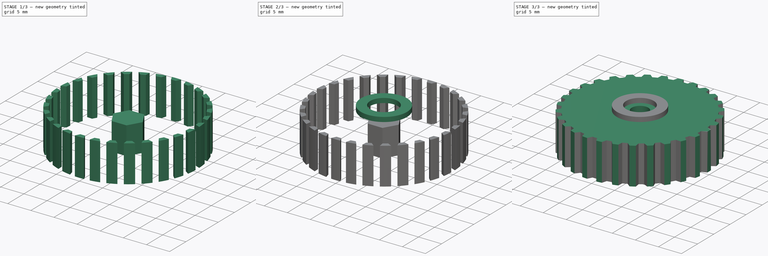
[diagram: build sequence overview — one tinted view per stage of 3, left to right]
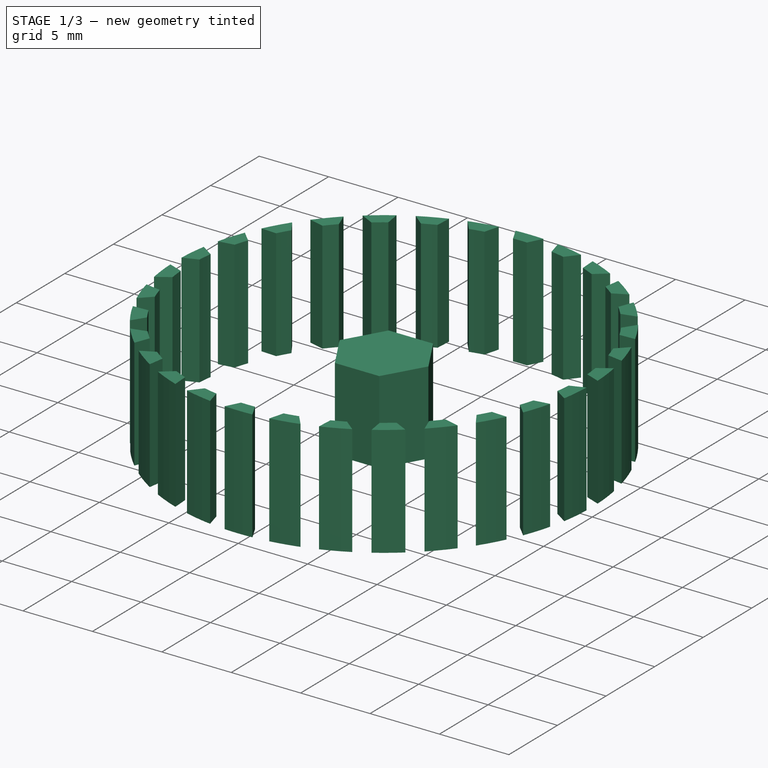
[diagram: stage 1 of 3 — iso view after this stage's code; geometry added in this stage tinted green]
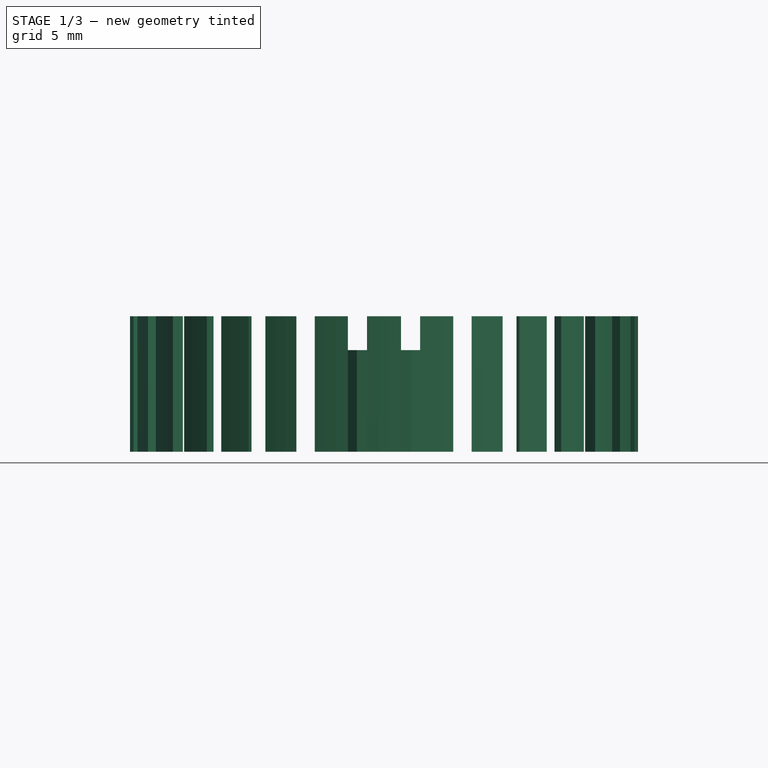
[diagram: stage 1 of 3 — front view after this stage's code; geometry added in this stage tinted green]
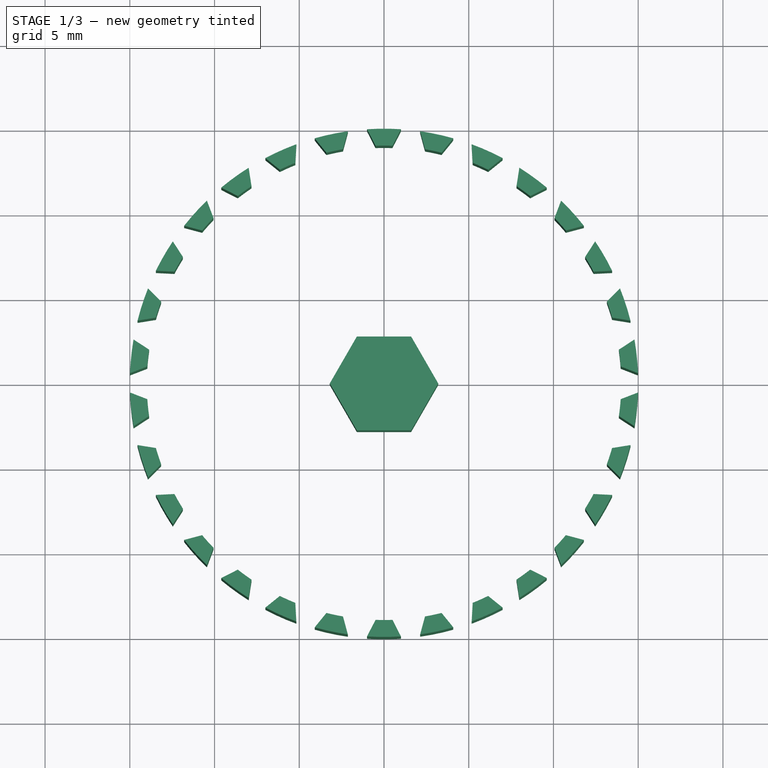
[diagram: stage 1 of 3 — top view after this stage's code; geometry added in this stage tinted green]
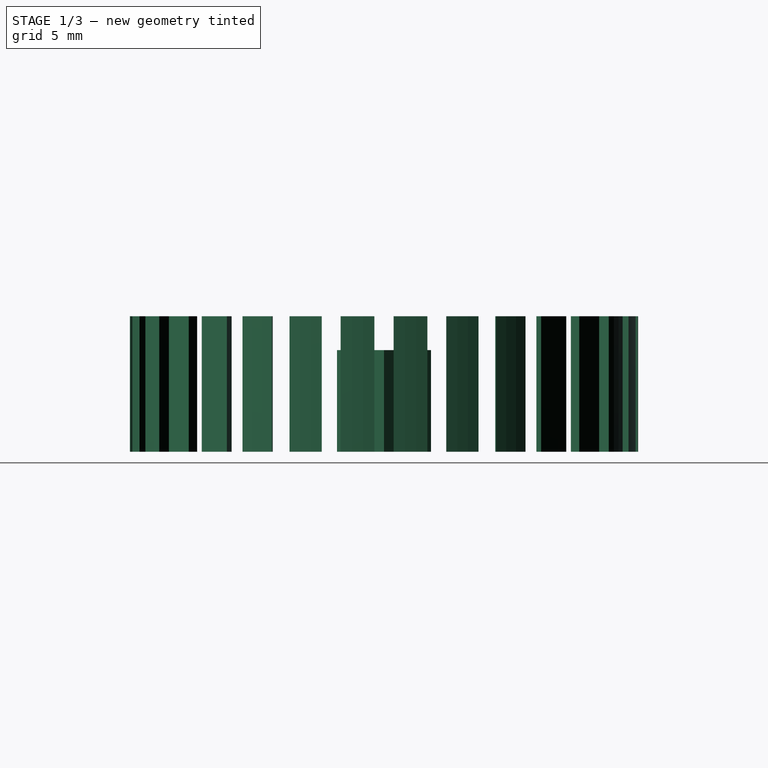
[diagram: stage 1 of 3 — right view after this stage's code; geometry added in this stage tinted green]
FCSTD DOCUMENT  (FreeCAD 0.16R6707 (Git))
Label: HeightKnob
License: All rights reserved
LicenseURL: http://en.wikipedia.org/wiki/All_rights_reserved
objects: Sketcher::SketchObject×4, PartDesign::Pad×4, Part::MultiFuse×2, Part::FeaturePython×1, Part::Cut×1
note: 16 computed .brp shape members not serialized (recipe doc carries the construction recipe); baked Part::Feature solids carry a one-line shape summary decoded from their .brp

FEATURE [Sketcher::SketchObject] Sketch001
  sketch-geometry (7):
    g0: LineSegment StartX=1.6 StartY=-2.77128 StartZ=0 EndX=3.2 EndY=0 EndZ=0
    g1: LineSegment StartX=3.2 StartY=0 StartZ=0 EndX=1.6 EndY=2.77128 EndZ=0
    g2: LineSegment StartX=1.6 StartY=2.77128 StartZ=0 EndX=-1.6 EndY=2.77128 EndZ=0
    g3: LineSegment StartX=-1.6 StartY=2.77128 StartZ=0 EndX=-3.2 EndY=0 EndZ=0
    g4: LineSegment StartX=-3.2 StartY=0 StartZ=0 EndX=-1.6 EndY=-2.77128 EndZ=0
    g5: LineSegment StartX=-1.6 StartY=-2.77128 StartZ=0 EndX=1.6 EndY=-2.77128 EndZ=0
    g6: Circle [constr] CenterX=0 CenterY=0 CenterZ=0 NormalX=0 NormalY=0 NormalZ=1 Radius=3.2
  constraints (16):
    c: Coincident(g0,g1)
    c: Coincident(g1,g2)
    c: Coincident(g2,g3)
    c: Coincident(g3,g4)
    c: Coincident(g4,g5)
    c: Coincident(g5,g0)
    c: Equal(g0, g1-g5) x5
    c: PointOnObject(g0,g6)
    c: PointOnObject(g1,g6)
    c: PointOnObject(g2,g6)
    c: PointOnObject(g3,g6)
    c: PointOnObject(g4,g6)
    c: PointOnObject(g5,g6)
    c: Coincident(g6,g-1)
    c: Parallel(g2,g-1)
    c: Radius(g6) = 3.2
FEATURE [PartDesign::Pad] Pad001  label="NutMount"
  Length = 6
  Length2 = 100
  Sketch = -> Sketch001
  Type = 0
FEATURE [Sketcher::SketchObject] Sketch002
  sketch-geometry (4):
    g0: ArcOfCircle CenterX=0 CenterY=0 CenterZ=0 NormalX=0 NormalY=0 NormalZ=1 Radius=15 StartAngle=1.50408 EndAngle=1.63751
    g1: ArcOfCircle CenterX=0 CenterY=0 CenterZ=0 NormalX=0 NormalY=0 NormalZ=1 Radius=14 StartAngle=1.53507 EndAngle=1.60652
    g2: LineSegment StartX=-1 StartY=14.9666 StartZ=0 EndX=-0.5 EndY=13.9911 EndZ=0
    g3: LineSegment StartX=1 StartY=14.9666 StartZ=0 EndX=0.5 EndY=13.9911 EndZ=0
  constraints (12):
    c: Coincident(g-1,g0)
    c: Coincident(g-1,g1)
    c: Radius(g0) = 15
    c: Radius(g1) = 14
    c: Coincident(g3,g1)
    c: Coincident(g3,g0)
    c: Coincident(g2,g0)
    c: Coincident(g2,g1)
    c: Equal(g2,g3)
    c: Symmetric(g0,g0,g-2)
    c: DistanceX(g0,g0) = 2
    c: DistanceX(g1,g1) = 1
FEATURE [PartDesign::Pad] Pad002
  Length = 8
  Length2 = 100
  Sketch = -> Sketch002
  Type = 0
FEATURE [Part::FeaturePython] Array  # Draft array (typed FeaturePython)
  Angle = 360
  ArrayType = 1
  Axis = (0,0,1)
  Base = -> Pad002
  Center = (0,0,0)
  Fuse = false
  IntervalAxis = (0,0,0)
  IntervalX = (1,0,0)
  IntervalY = (0,1,0)
  IntervalZ = (0,0,0)
  NumberPolar = 30
  NumberX = 2
  NumberY = 2
  NumberZ = 1
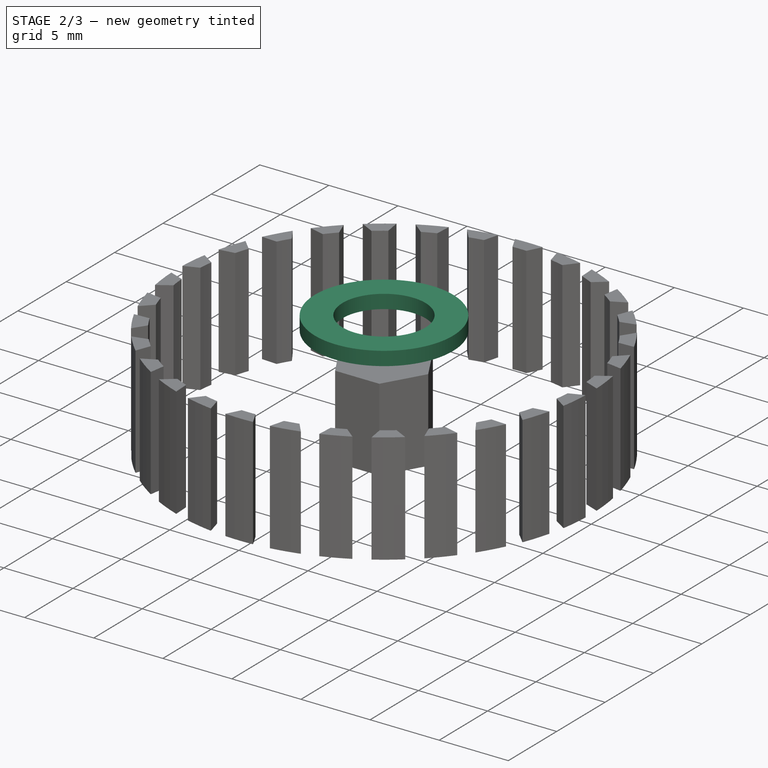
[diagram: stage 2 of 3 — iso view after this stage's code; geometry added in this stage tinted green]
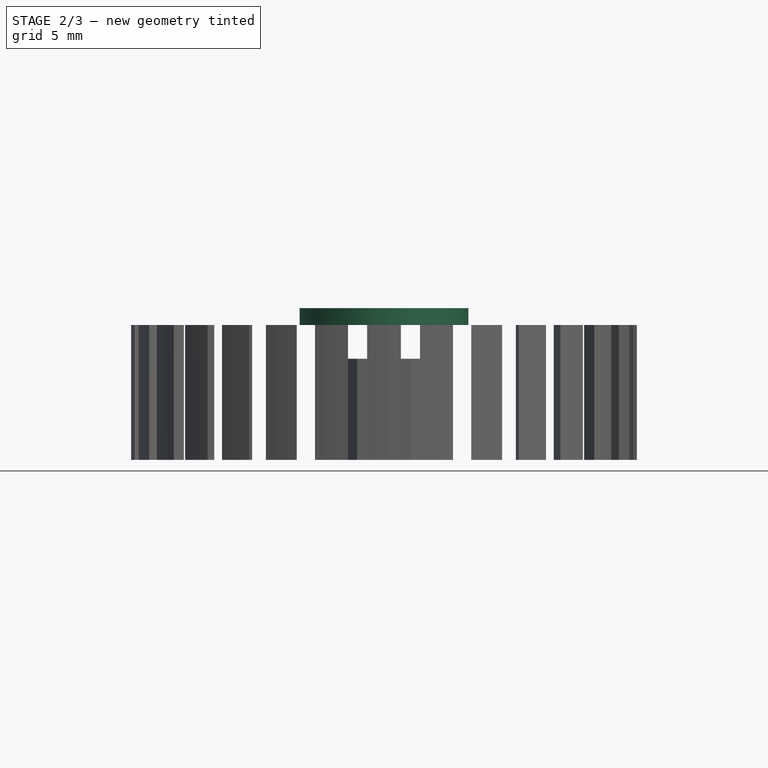
[diagram: stage 2 of 3 — front view after this stage's code; geometry added in this stage tinted green]
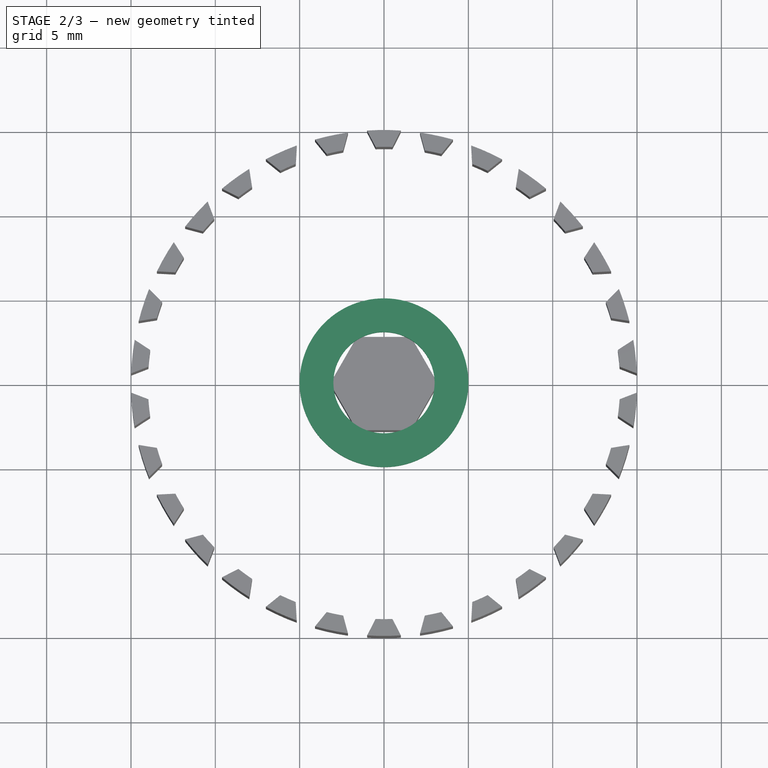
[diagram: stage 2 of 3 — top view after this stage's code; geometry added in this stage tinted green]
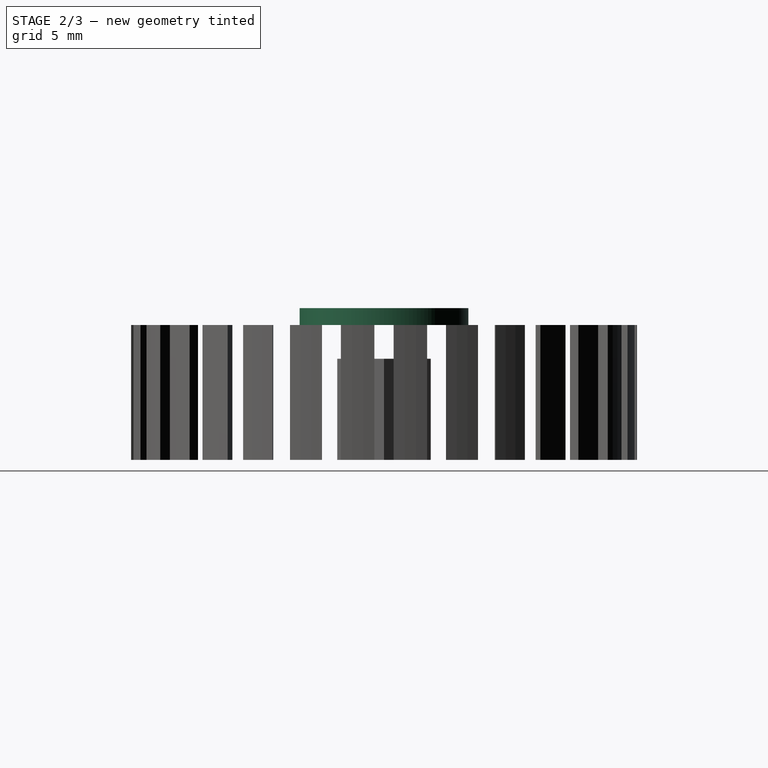
[diagram: stage 2 of 3 — right view after this stage's code; geometry added in this stage tinted green]
FEATURE [Sketcher::SketchObject] Sketch003
  Placement = pos=(0,0,8) rot=(0,0,1;0rad)
  sketch-geometry (2):
    g0: Circle CenterX=0 CenterY=0 CenterZ=0 NormalX=0 NormalY=0 NormalZ=1 Radius=5
    g1: Circle CenterX=0 CenterY=0 CenterZ=0 NormalX=0 NormalY=0 NormalZ=1 Radius=3
  constraints (4):
    c: Coincident(g1,g-1)
    c: Coincident(g1,g0)
    c: Radius(g1) = 3
    c: Radius(g0) = 5
FEATURE [PartDesign::Pad] Pad003  label="Buffer"
  Length = 1
  Length2 = 100
  Placement = pos=(0,0,8) rot=(0,0,1;0rad)
  Sketch = -> Sketch003
  Type = 0
FEATURE [Part::MultiFuse] Fusion001  label="CutBlock"
  Shapes = -> [Array,Pad001]
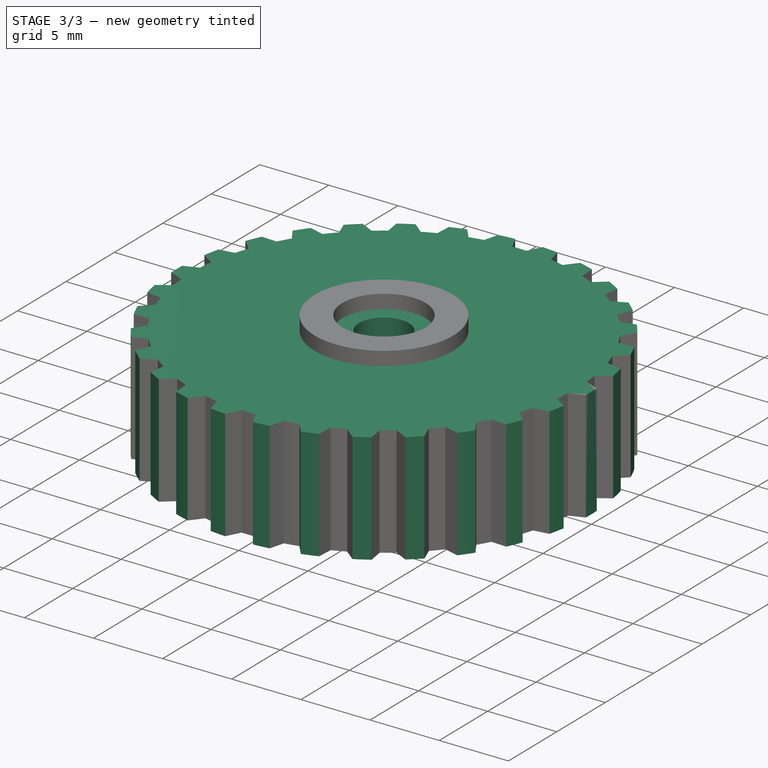
[diagram: stage 3 of 3 — iso view after this stage's code; geometry added in this stage tinted green]
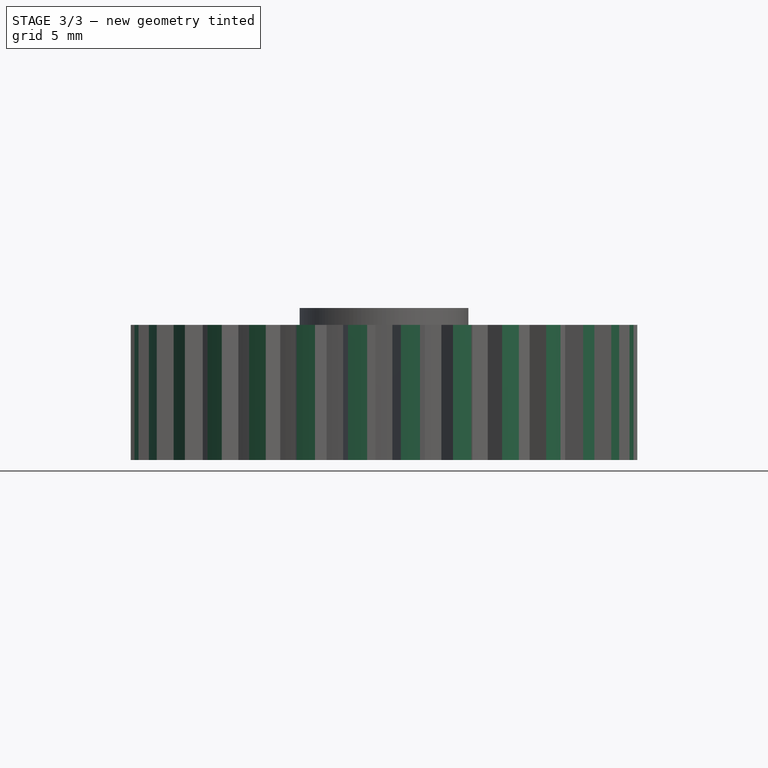
[diagram: stage 3 of 3 — front view after this stage's code; geometry added in this stage tinted green]
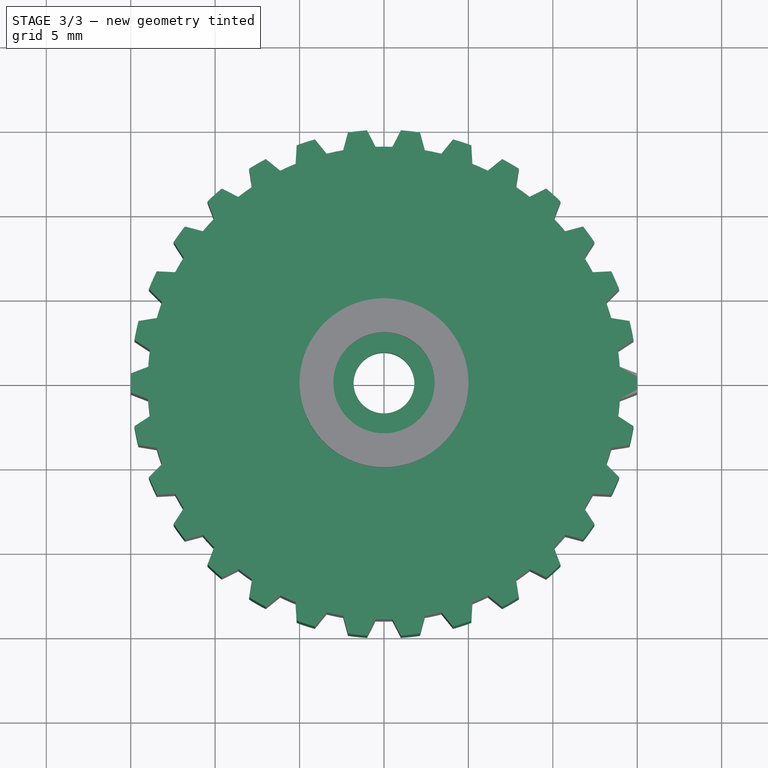
[diagram: stage 3 of 3 — top view after this stage's code; geometry added in this stage tinted green]
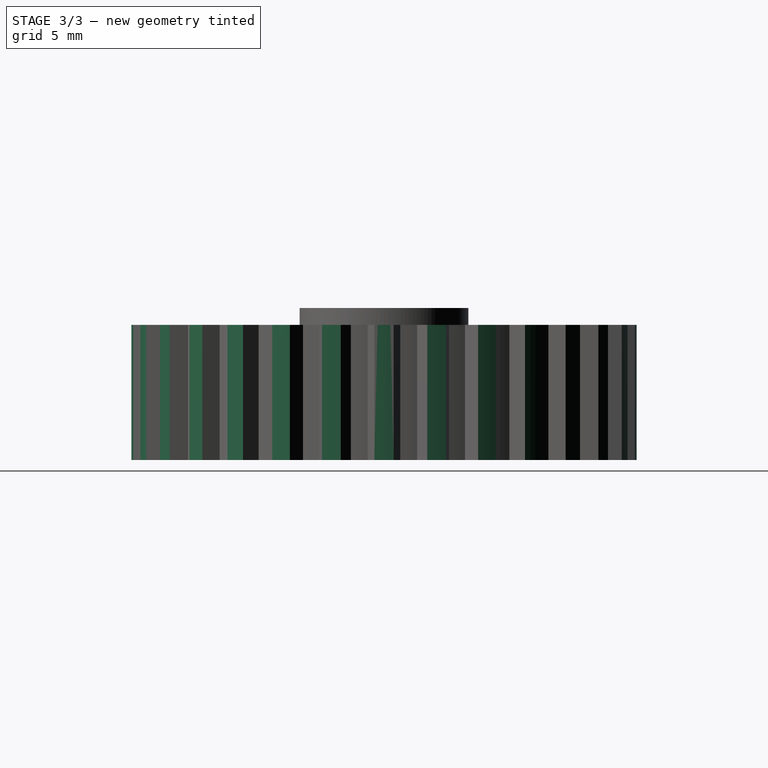
[diagram: stage 3 of 3 — right view after this stage's code; geometry added in this stage tinted green]
FEATURE [Sketcher::SketchObject] Sketch
  sketch-geometry (2):
    g0: Circle CenterX=0 CenterY=0 CenterZ=0 NormalX=0 NormalY=0 NormalZ=1 Radius=15
    g1: Circle CenterX=0 CenterY=0 CenterZ=0 NormalX=0 NormalY=0 NormalZ=1 Radius=1.8
  constraints (4):
    c: Coincident(g0,g-1)
    c: Coincident(g1,g-1)
    c: Radius(g1) = 1.8
    c: Radius(g0) = 15
FEATURE [PartDesign::Pad] Pad  label="Base"
  Length = 8
  Length2 = 100
  Sketch = -> Sketch
  Type = 0
FEATURE [Part::MultiFuse] Fusion  label="BaseBlock"
  Shapes = -> [Pad003,Pad]
FEATURE [Part::Cut] Cut  label="Final"
  Base = -> Fusion
  Tool = -> Fusion001
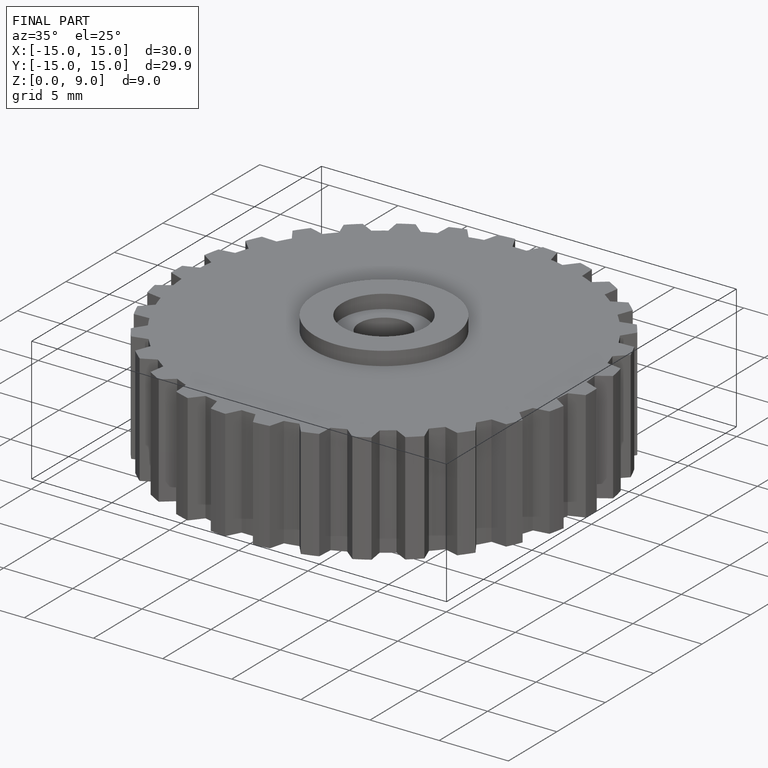
[diagram: finished part — iso view with bounding-box wireframe]
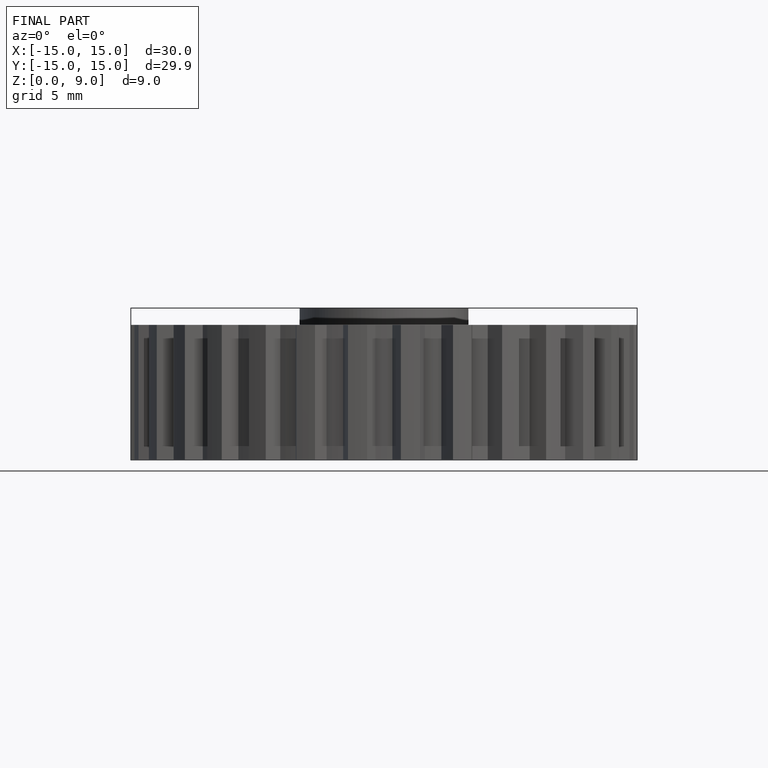
[diagram: finished part — front view with bounding-box wireframe]
